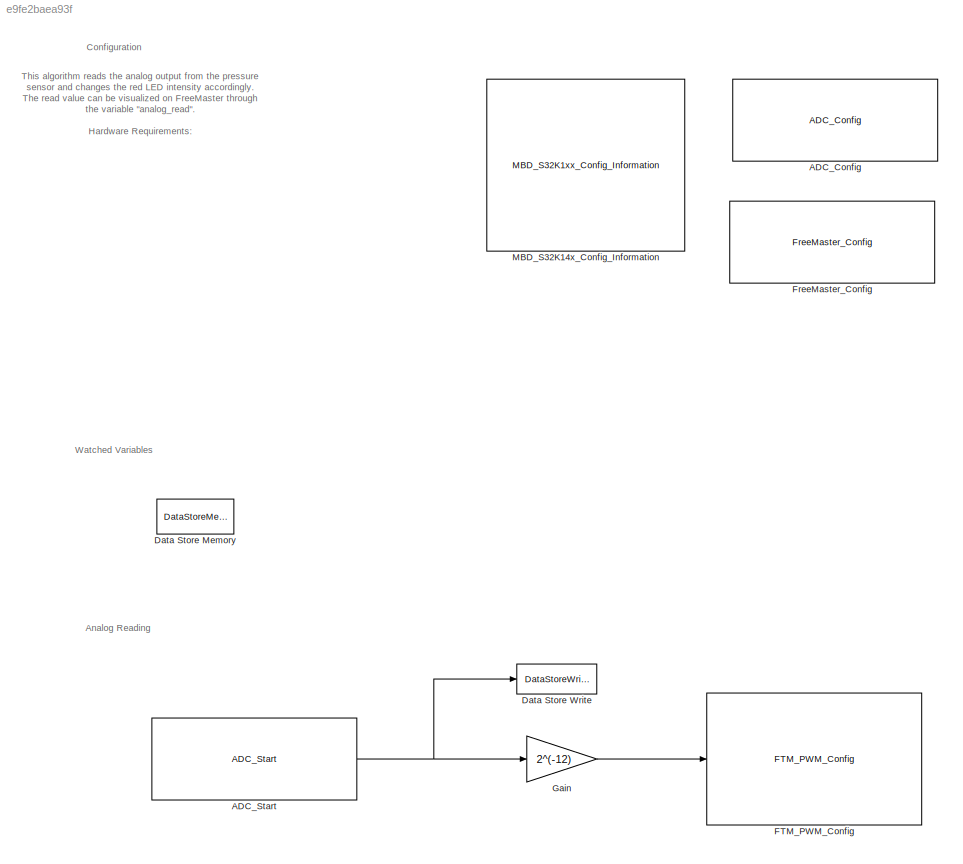
MODEL slx_e9fe2baea93f
KIND model
CONFIG AbsTol = auto
CONFIG EnableMultiTasking = on
CONFIG FixedStep = auto
CONFIG InitFcn = mbd_s32k_consistency_checks(bdroot(gcs));
CONFIG MaxStep = auto
CONFIG MinStep = auto
CONFIG RelTol = 1e-3
CONFIG SampleTimeConstraint = Unconstrained
CONFIG SolverName = FixedStepDiscrete
CONFIG StartTime = 0.0
CONFIG StopTime = 10.0
WORKSPACE source: mxarray member
WORKSPACE mwTaskManagerKernelLatency = 1e-06
BLOCK [Reference] ADC_Config  REF=mbd_s32k1xx_ec_toolbox/Motor Control Blocks/ADC Blocks/ADC_Config
  SourceBlock = mbd_s32k1xx_ec_toolbox/Motor Control Blocks/ADC Blocks/ADC_Config
  SourceType = adc_s32k_config_block
BLOCK [Reference] ADC_Start  REF=mbd_s32k1xx_ec_toolbox/Motor Control Blocks/ADC Blocks/ADC_Start
  SourceBlock = mbd_s32k1xx_ec_toolbox/Motor Control Blocks/ADC Blocks/ADC_Start
  SourceType = adc_s32k_start_block
BLOCK [DataStoreMemory] Data Store Memory
  DataStoreName = analog_read
  ShowAdditionalParam = off
  StateMustResolveToSignalObject = on
  WriteAfterWriteMsg = warning
BLOCK [DataStoreWrite] Data Store Write
  DataStoreName = analog_read
  IndexOptions = Index vector (dialog)
  Indices = 1
  OutputSizes = 1
BLOCK [Reference] FTM_PWM_Config  REF=mbd_s32k1xx_ec_toolbox/Motor Control Blocks/FTM Blocks/FTM_PWM_Config
  SourceBlock = mbd_s32k1xx_ec_toolbox/Motor Control Blocks/FTM Blocks/FTM_PWM_Config
  SourceType = FTM_s32k_pwm_config_block
BLOCK [Reference] FreeMaster_Config  REF=mbd_s32k1xx_ec_toolbox/Utility Blocks/FreeMaster_Config
  SourceBlock = mbd_s32k1xx_ec_toolbox/Utility Blocks/FreeMaster_Config
  SourceType = fm_s32k_config
BLOCK [Gain] Gain
  Gain = 2^(-12)
  ParamDataTypeStr = single
BLOCK [Reference] MBD_S32K14x_Config_Information  REF=mbd_s32k1xx_ec_toolbox/MBD_S32K1xx_Config_Information
  Priority = 0
  SourceBlock = mbd_s32k1xx_ec_toolbox/MBD_S32K1xx_Config_Information
  SourceType = MBDTBX_EC_S32K
ANNOTATION (root): Analog Reading
ANNOTATION (root): Configuration
ANNOTATION (root): This algorithm reads the analog output from the pressure sensor and changes the red LED intensity accordingly. The read value can be visualized on FreeMaster through the variable "analog_read". Hardware Requirements: - S32K144 board - HTDM100USP Pin connections: Sensor | Board 1 | PTC2 2 | GND 8 | 5V Kamilla Peixoto - Scaleo Medical v1 - 22/03/2023
ANNOTATION (root): Watched Variables
NET ADC_Start:1 -> Data Store Write:1, Gain:1
LINE Gain:1 -> FTM_PWM_Config:1
note: NET lines group one-source signal fan-out (src -> all destinations, sorted); 1:1 wires keep LINE
